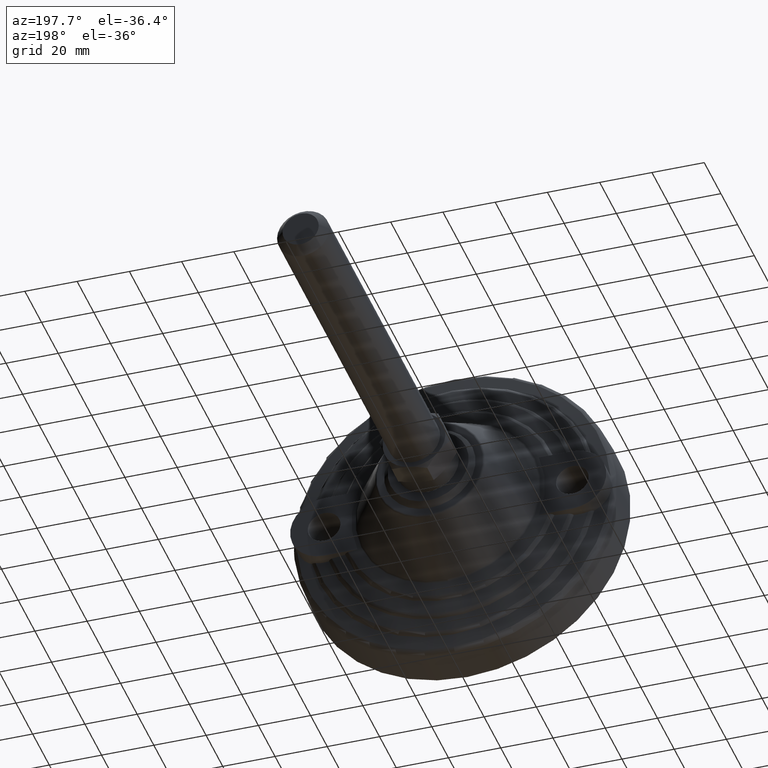
[diagram: clean part render]
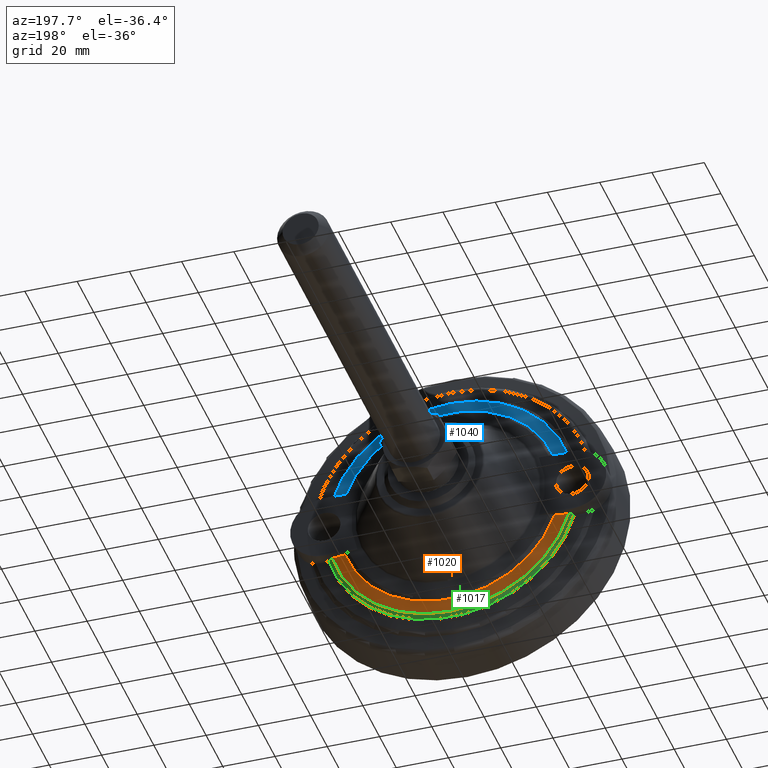
[diagram: same view with three faces highlighted in distinct colors, each labeled with its STEP entity id]
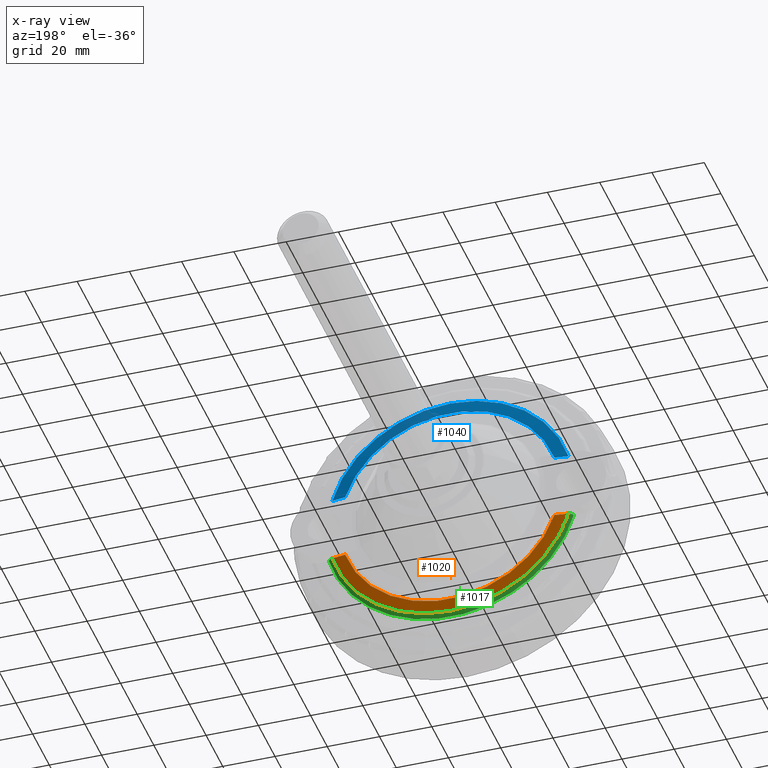
[diagram: x-ray of the same camera — body ghosted, the three highlighted faces saturated]
A machine part, auxiliary view with three faces highlighted in distinct colors.
The next image is the same camera in x-ray (body ghosted, the three faces saturated) — at least one of them is partly hidden behind the body in this view.
Their STEP definitions:

[orange] entity #1020 — the highlighted conical surface has half-angle 81.101 deg.
#28=CONICAL_SURFACE('',#1197,47.0631941147744,1.41548378602478);
#59=(
BOUNDED_CURVE()
B_SPLINE_CURVE(2,(#1729,#1730,#1731),.UNSPECIFIED.,.F.,.F.)
B_SPLINE_CURVE_WITH_KNOTS((3,3),(2.48216744229836,2.95691177335374),
 .UNSPECIFIED.)
CURVE()
GEOMETRIC_REPRESENTATION_ITEM()
RATIONAL_B_SPLINE_CURVE((1.06337143999097,1.06011791883199,1.05330164715672))
REPRESENTATION_ITEM('')
);
#62=(
BOUNDED_CURVE()
B_SPLINE_CURVE(2,(#1934,#1935,#1936),.UNSPECIFIED.,.F.,.F.)
B_SPLINE_CURVE_WITH_KNOTS((3,3),(-2.95691177335374,-2.48216744229835),
 .UNSPECIFIED.)
CURVE()
GEOMETRIC_REPRESENTATION_ITEM()
RATIONAL_B_SPLINE_CURVE((1.05330164715672,1.06011791883199,1.06337143999097))
REPRESENTATION_ITEM('')
);
#189=FACE_OUTER_BOUND('',#251,.T.);
#251=EDGE_LOOP('',(#699,#700,#701,#702));
#310=CIRCLE('',#1179,42.1048876765188);
#317=CIRCLE('',#1191,47.0631941147744);
#392=VERTEX_POINT('',#1698);
#394=VERTEX_POINT('',#1718);
#395=VERTEX_POINT('',#1733);
#420=VERTEX_POINT('',#1916);
#498=EDGE_CURVE('',#394,#392,#59,.T.);
#499=EDGE_CURVE('',#395,#394,#310,.T.);
#527=EDGE_CURVE('',#420,#392,#317,.T.);
#532=EDGE_CURVE('',#420,#395,#62,.T.);
#699=ORIENTED_EDGE('',*,*,#532,.F.);
#700=ORIENTED_EDGE('',*,*,#527,.T.);
#701=ORIENTED_EDGE('',*,*,#498,.F.);
#702=ORIENTED_EDGE('',*,*,#499,.F.);
#1020=ADVANCED_FACE('',(#189),#28,.T.);
#1179=AXIS2_PLACEMENT_3D('',#1734,#1333,#1334);
#1191=AXIS2_PLACEMENT_3D('',#1917,#1360,#1361);
#1197=AXIS2_PLACEMENT_3D('',#1933,#1372,#1373);
#1333=DIRECTION('center_axis',(0.,1.,0.));
#1334=DIRECTION('ref_axis',(0.,0.,1.));
#1360=DIRECTION('center_axis',(0.,1.,0.));
#1361=DIRECTION('ref_axis',(0.,0.,1.));
#1372=DIRECTION('center_axis',(0.,-1.,0.));
#1373=DIRECTION('ref_axis',(0.,0.,-1.));
#1698=CARTESIAN_POINT('',(-45.2321151427272,20.4052624136849,-13.));
#1718=CARTESIAN_POINT('',(-40.0477410880099,21.181601929531,-13.));
#1729=CARTESIAN_POINT('Ctrl Pts',(-40.0477410880087,21.181601929531,-13.));
#1730=CARTESIAN_POINT('Ctrl Pts',(-42.4957862052787,20.8170299743126,-13.));
#1731=CARTESIAN_POINT('Ctrl Pts',(-45.23211514269,20.4052624136905,-13.));
#1733=CARTESIAN_POINT('',(40.0477410880098,21.1816019295309,-13.));
#1734=CARTESIAN_POINT('Origin',(0.,21.1816019295309,0.));
#1916=CARTESIAN_POINT('',(45.2321151427272,20.4052624136849,-13.));
#1917=CARTESIAN_POINT('Origin',(0.,20.4052624136849,0.));
#1933=CARTESIAN_POINT('Origin',(0.,20.4052624136849,0.));
#1934=CARTESIAN_POINT('Ctrl Pts',(45.23211514269,20.4052624136905,-13.));
#1935=CARTESIAN_POINT('Ctrl Pts',(42.4957862052787,20.8170299743126,-13.));
#1936=CARTESIAN_POINT('Ctrl Pts',(40.0477410880086,21.181601929531,-13.));

[blue] entity #1040 — the highlighted conical surface has half-angle 81.101 deg.
#36=CONICAL_SURFACE('',#1244,47.0631941147744,1.41548378602478);
#60=(
BOUNDED_CURVE()
B_SPLINE_CURVE(2,(#1765,#1766,#1767),.UNSPECIFIED.,.F.,.F.)
B_SPLINE_CURVE_WITH_KNOTS((3,3),(1.140345431157,1.61508976221227),
 .UNSPECIFIED.)
CURVE()
GEOMETRIC_REPRESENTATION_ITEM()
RATIONAL_B_SPLINE_CURVE((1.05330164715672,1.06011791883199,1.06337143999097))
REPRESENTATION_ITEM('')
);
#61=(
BOUNDED_CURVE()
B_SPLINE_CURVE(2,(#1828,#1829,#1830),.UNSPECIFIED.,.F.,.F.)
B_SPLINE_CURVE_WITH_KNOTS((3,3),(2.48216744229835,2.95691177335374),
 .UNSPECIFIED.)
CURVE()
GEOMETRIC_REPRESENTATION_ITEM()
RATIONAL_B_SPLINE_CURVE((1.06337143999097,1.06011791883199,1.05330164715672))
REPRESENTATION_ITEM('')
);
#209=FACE_OUTER_BOUND('',#273,.T.);
#273=EDGE_LOOP('',(#812,#813,#814,#815));
#318=CIRCLE('',#1193,47.0631941147744);
#347=CIRCLE('',#1243,42.1048876765188);
#398=VERTEX_POINT('',#1753);
#399=VERTEX_POINT('',#1764);
#405=VERTEX_POINT('',#1792);
#410=VERTEX_POINT('',#1817);
#504=EDGE_CURVE('',#398,#399,#60,.T.);
#516=EDGE_CURVE('',#410,#405,#61,.T.);
#529=EDGE_CURVE('',#398,#405,#318,.T.);
#568=EDGE_CURVE('',#399,#410,#347,.T.);
#812=ORIENTED_EDGE('',*,*,#504,.F.);
#813=ORIENTED_EDGE('',*,*,#529,.T.);
#814=ORIENTED_EDGE('',*,*,#516,.F.);
#815=ORIENTED_EDGE('',*,*,#568,.F.);
#1040=ADVANCED_FACE('',(#209),#36,.T.);
#1193=AXIS2_PLACEMENT_3D('',#1929,#1364,#1365);
#1243=AXIS2_PLACEMENT_3D('',#2014,#1471,#1472);
#1244=AXIS2_PLACEMENT_3D('',#2015,#1473,#1474);
#1364=DIRECTION('center_axis',(0.,1.,0.));
#1365=DIRECTION('ref_axis',(0.,0.,1.));
#1471=DIRECTION('center_axis',(0.,1.,0.));
#1472=DIRECTION('ref_axis',(0.,0.,1.));
#1473=DIRECTION('center_axis',(0.,-1.,0.));
#1474=DIRECTION('ref_axis',(-1.22464679914735E-16,0.,1.));
#1753=CARTESIAN_POINT('',(-45.2321151427272,20.4052624136849,13.));
#1764=CARTESIAN_POINT('',(-40.0477410880111,21.1816019295313,13.));
#1765=CARTESIAN_POINT('Ctrl Pts',(-45.23211514269,20.4052624136905,13.));
#1766=CARTESIAN_POINT('Ctrl Pts',(-42.4957862052794,20.8170299743125,13.));
#1767=CARTESIAN_POINT('Ctrl Pts',(-40.0477410880099,21.1816019295309,13.));
#1792=CARTESIAN_POINT('',(45.2321151427272,20.4052624136849,13.));
#1817=CARTESIAN_POINT('',(40.0477410880098,21.1816019295309,13.));
#1828=CARTESIAN_POINT('Ctrl Pts',(40.0477410880086,21.181601929531,13.));
#1829=CARTESIAN_POINT('Ctrl Pts',(42.4957862052787,20.8170299743126,13.));
#1830=CARTESIAN_POINT('Ctrl Pts',(45.23211514269,20.4052624136905,13.));
#1929=CARTESIAN_POINT('Origin',(0.,20.4052624136849,0.));
#2014=CARTESIAN_POINT('Origin',(0.,21.1816019295309,0.));
#2015=CARTESIAN_POINT('Origin',(0.,20.4052624136849,0.));

[green] entity #1017 — the highlighted toroidal blend (fillet) surface has major radius 46.7538 mm and minor (blend) radius 2 mm.
#51=TOROIDAL_SURFACE('',#1189,46.7537846684015,1.99999999999999);
#94=B_SPLINE_CURVE_WITH_KNOTS('',3,(#1699,#1700,#1701,#1702,#1703,#1704,
#1705,#1706,#1707,#1708),.UNSPECIFIED.,.F.,.F.,(4,2,2,2,4),(-1.14176863303254,
-1.13609643070123,-1.06154376045766,-0.985190017273933,-0.937873165345006),
 .UNSPECIFIED.);
#114=B_SPLINE_CURVE_WITH_KNOTS('',3,(#1918,#1919,#1920,#1921,#1922,#1923,
#1924,#1925,#1926,#1927),.UNSPECIFIED.,.F.,.F.,(4,2,2,2,4),(0.937872281576958,
0.985189133505884,1.06154287668961,1.13609554693319,1.14176774926452),
 .UNSPECIFIED.);
#186=FACE_OUTER_BOUND('',#248,.T.);
#248=EDGE_LOOP('',(#685,#686,#687,#688));
#316=CIRCLE('',#1190,48.6265876765343);
#317=CIRCLE('',#1191,47.0631941147744);
#391=VERTEX_POINT('',#1697);
#392=VERTEX_POINT('',#1698);
#419=VERTEX_POINT('',#1914);
#420=VERTEX_POINT('',#1916);
#494=EDGE_CURVE('',#391,#392,#94,.T.);
#526=EDGE_CURVE('',#419,#391,#316,.T.);
#527=EDGE_CURVE('',#420,#392,#317,.T.);
#528=EDGE_CURVE('',#420,#419,#114,.T.);
#685=ORIENTED_EDGE('',*,*,#526,.T.);
#686=ORIENTED_EDGE('',*,*,#494,.T.);
#687=ORIENTED_EDGE('',*,*,#527,.F.);
#688=ORIENTED_EDGE('',*,*,#528,.T.);
#1017=ADVANCED_FACE('',(#186),#51,.T.);
#1189=AXIS2_PLACEMENT_3D('',#1913,#1356,#1357);
#1190=AXIS2_PLACEMENT_3D('',#1915,#1358,#1359);
#1191=AXIS2_PLACEMENT_3D('',#1917,#1360,#1361);
#1356=DIRECTION('center_axis',(0.,1.,0.));
#1357=DIRECTION('ref_axis',(1.16687841360164E-14,0.,-1.));
#1358=DIRECTION('center_axis',(0.,1.,0.));
#1359=DIRECTION('ref_axis',(0.,0.,1.));
#1360=DIRECTION('center_axis',(0.,1.,0.));
#1361=DIRECTION('ref_axis',(0.,0.,1.));
#1697=CARTESIAN_POINT('',(-46.8566433823815,19.1312019294895,-13.));
#1698=CARTESIAN_POINT('',(-45.2321151427272,20.4052624136849,-13.));
#1699=CARTESIAN_POINT('Ctrl Pts',(-46.8566433823815,19.1312019294895,-13.));
#1700=CARTESIAN_POINT('Ctrl Pts',(-46.8496159411654,19.149270990146,-13.));
#1701=CARTESIAN_POINT('Ctrl Pts',(-46.842398549141,19.1670313176445,-13.));
#1702=CARTESIAN_POINT('Ctrl Pts',(-46.7381886081741,19.4133070465426,-13.));
#1703=CARTESIAN_POINT('Ctrl Pts',(-46.5693241078449,19.6591004369658,-13.));
#1704=CARTESIAN_POINT('Ctrl Pts',(-46.2096254050441,20.0107356883556,-13.));
#1705=CARTESIAN_POINT('Ctrl Pts',(-45.9534634129143,20.1770466602087,-13.));
#1706=CARTESIAN_POINT('Ctrl Pts',(-45.5713783902102,20.3318012790156,-13.));
#1707=CARTESIAN_POINT('Ctrl Pts',(-45.401590945253,20.3797567236342,-13.));
#1708=CARTESIAN_POINT('Ctrl Pts',(-45.2321151427272,20.405262413685,-13.));
#1913=CARTESIAN_POINT('Origin',(0.,18.4293409085398,0.));
#1914=CARTESIAN_POINT('',(46.8566433823858,19.1312019294909,-13.));
#1915=CARTESIAN_POINT('Origin',(0.,19.1312019294895,0.));
#1916=CARTESIAN_POINT('',(45.2321151427272,20.4052624136849,-13.));
#1917=CARTESIAN_POINT('Origin',(0.,20.4052624136849,0.));
#1918=CARTESIAN_POINT('Ctrl Pts',(45.2321151427272,20.405262413685,-13.));
#1919=CARTESIAN_POINT('Ctrl Pts',(45.401590945253,20.3797567236342,-13.));
#1920=CARTESIAN_POINT('Ctrl Pts',(45.5713783902102,20.3318012790156,-13.));
#1921=CARTESIAN_POINT('Ctrl Pts',(45.9534634129143,20.1770466602087,-13.));
#1922=CARTESIAN_POINT('Ctrl Pts',(46.2096254050441,20.0107356883556,-13.));
#1923=CARTESIAN_POINT('Ctrl Pts',(46.5693241078449,19.6591004369658,-13.));
#1924=CARTESIAN_POINT('Ctrl Pts',(46.7381886081741,19.4133070465425,-13.));
#1925=CARTESIAN_POINT('Ctrl Pts',(46.8423985491411,19.1670313176444,-13.));
#1926=CARTESIAN_POINT('Ctrl Pts',(46.8496159411654,19.1492709901459,-13.));
#1927=CARTESIAN_POINT('Ctrl Pts',(46.8566433823816,19.1312019294893,-13.));